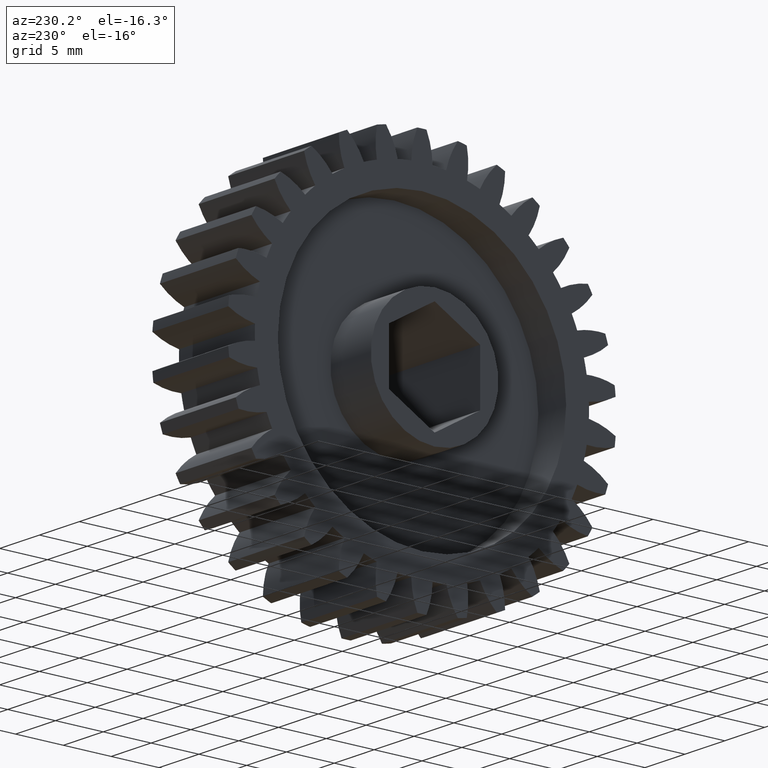
[diagram: clean part render]
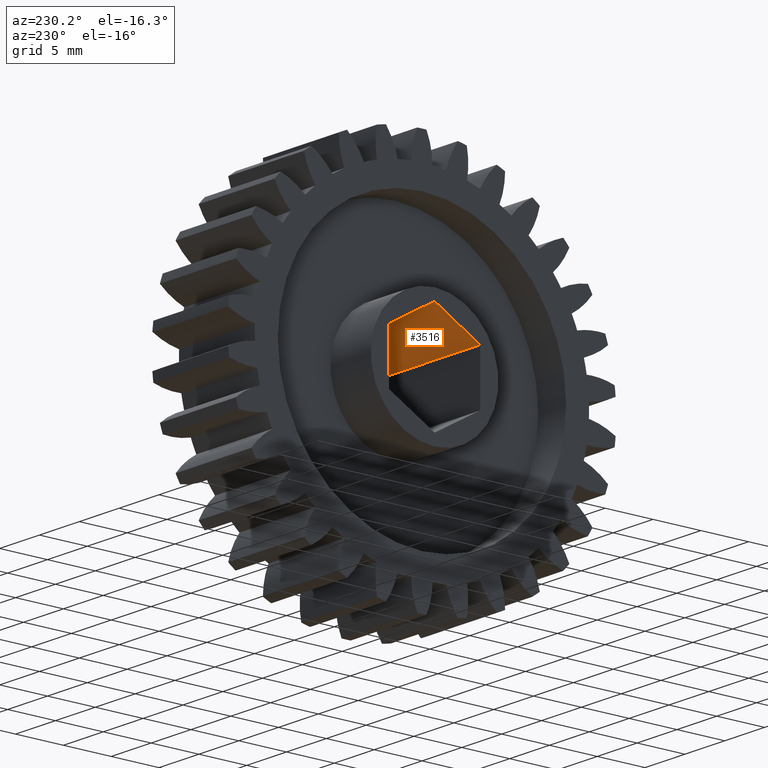
[diagram: same view with one face highlighted and labeled with its STEP entity id]
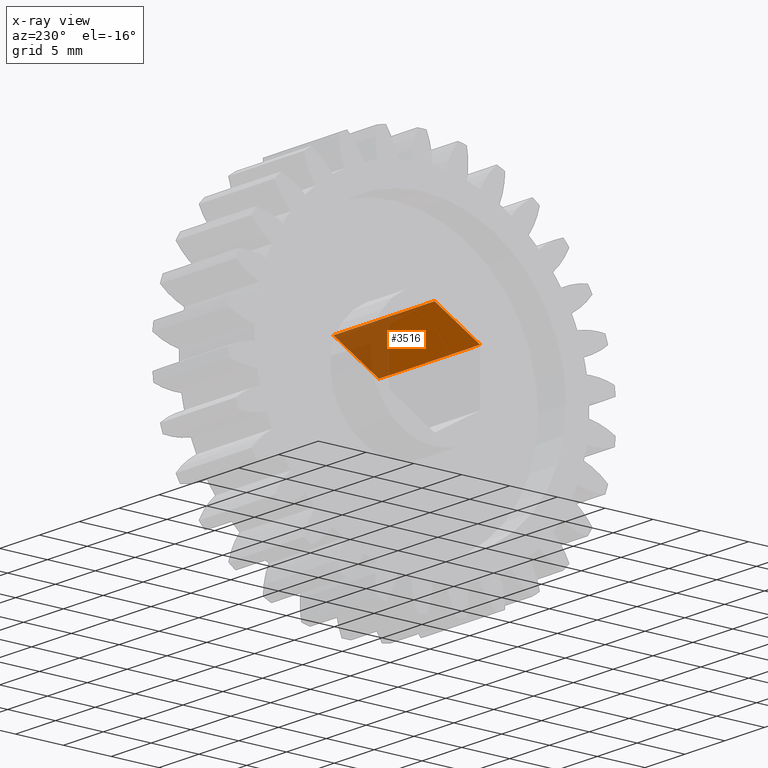
[diagram: x-ray of the same camera — body ghosted, the highlighted face saturated]
A machine part, auxiliary view. The second image highlights one B-rep face of the part: STEP entity #3516.
The next image is the same camera in x-ray: the body ghosted, the highlighted face saturated — about 33% of this face is hidden behind the body in this view.
In plain terms, the highlighted planar face has unit normal (0, -0.5, 0.866).
Its self-contained STEP definition (entity closure, byte-faithful):
#12 = EDGE_CURVE ( 'NONE', #2134, #845, #1989, .T. ) ;
#153 = LINE ( 'NONE', #751, #2407 ) ;
#271 = EDGE_CURVE ( 'NONE', #845, #4264, #1376, .T. ) ;
#299 = EDGE_LOOP ( 'NONE', ( #2141, #2256, #2308, #2338 ) ) ;
#348 = EDGE_CURVE ( 'NONE', #2134, #419, #1188, .T. ) ;
#419 = VERTEX_POINT ( 'NONE', #2483 ) ;
#675 = DIRECTION ( 'NONE',  ( 0.0000000000000000000, -0.8660254037844386000, -0.5000000000000001100 ) ) ;
#751 = CARTESIAN_POINT ( 'NONE',  ( 0.4375000000000000600, 7.176444498392861800E-017, 0.2165063509461096800 ) ) ;
#845 = VERTEX_POINT ( 'NONE', #4415 ) ;
#1153 = VECTOR ( 'NONE', #2859, 39.37007874015748100 ) ;
#1188 = LINE ( 'NONE', #2723, #1153 ) ;
#1376 = LINE ( 'NONE', #1539, #1424 ) ;
#1424 = VECTOR ( 'NONE', #1662, 39.37007874015748100 ) ;
#1539 = CARTESIAN_POINT ( 'NONE',  ( -0.06250000000000001400, -0.1874999999999999700, 0.1082531754730547800 ) ) ;
#1598 = DIRECTION ( 'NONE',  ( 0.0000000000000000000, -0.8660254037844386000, -0.5000000000000001100 ) ) ;
#1643 = CARTESIAN_POINT ( 'NONE',  ( -0.06250000000000001400, 7.176444498392861800E-017, 0.2165063509461096800 ) ) ;
#1662 = DIRECTION ( 'NONE',  ( 1.000000000000000000, -0.0000000000000000000, -0.0000000000000000000 ) ) ;
#1754 = FACE_OUTER_BOUND ( 'NONE', #299, .T. ) ;
#1762 = EDGE_CURVE ( 'NONE', #419, #4264, #153, .T. ) ;
#1980 = VECTOR ( 'NONE', #1598, 39.37007874015748100 ) ;
#1989 = LINE ( 'NONE', #1643, #1980 ) ;
#2134 = VERTEX_POINT ( 'NONE', #2191 ) ;
#2141 = ORIENTED_EDGE ( 'NONE', *, *, #1762, .T. ) ;
#2191 = CARTESIAN_POINT ( 'NONE',  ( -0.06250000000000001400, 7.176444498392861800E-017, 0.2165063509461096800 ) ) ;
#2256 = ORIENTED_EDGE ( 'NONE', *, *, #271, .F. ) ;
#2308 = ORIENTED_EDGE ( 'NONE', *, *, #12, .F. ) ;
#2338 = ORIENTED_EDGE ( 'NONE', *, *, #348, .T. ) ;
#2407 = VECTOR ( 'NONE', #675, 39.37007874015748100 ) ;
#2483 = CARTESIAN_POINT ( 'NONE',  ( 0.4375000000000000600, 7.176444498392861800E-017, 0.2165063509461096800 ) ) ;
#2598 = AXIS2_PLACEMENT_3D ( 'NONE', #3179, #4609, #4504 ) ;
#2723 = CARTESIAN_POINT ( 'NONE',  ( -0.06250000000000001400, 7.176444498392861800E-017, 0.2165063509461096800 ) ) ;
#2859 = DIRECTION ( 'NONE',  ( 1.000000000000000000, -0.0000000000000000000, -0.0000000000000000000 ) ) ;
#3179 = CARTESIAN_POINT ( 'NONE',  ( -0.06250000000000001400, 7.176444498392861800E-017, 0.2165063509461096800 ) ) ;
#3516 = ADVANCED_FACE ( 'NONE', ( #1754 ), #3751, .F. ) ;
#3751 = PLANE ( 'NONE',  #2598 ) ;
#4264 = VERTEX_POINT ( 'NONE', #4426 ) ;
#4415 = CARTESIAN_POINT ( 'NONE',  ( -0.06250000000000001400, -0.1874999999999999700, 0.1082531754730547800 ) ) ;
#4426 = CARTESIAN_POINT ( 'NONE',  ( 0.4375000000000000600, -0.1874999999999999700, 0.1082531754730547800 ) ) ;
#4504 = DIRECTION ( 'NONE',  ( 0.0000000000000000000, -0.8660254037844386000, -0.5000000000000001100 ) ) ;
#4609 = DIRECTION ( 'NONE',  ( 0.0000000000000000000, -0.5000000000000001100, 0.8660254037844386000 ) ) ;